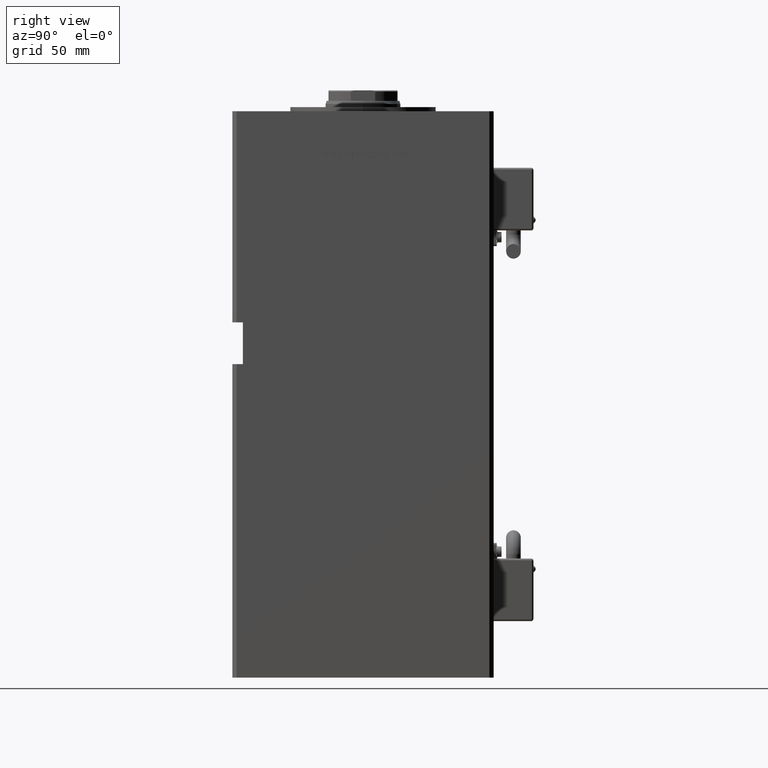
[diagram: clean part render]
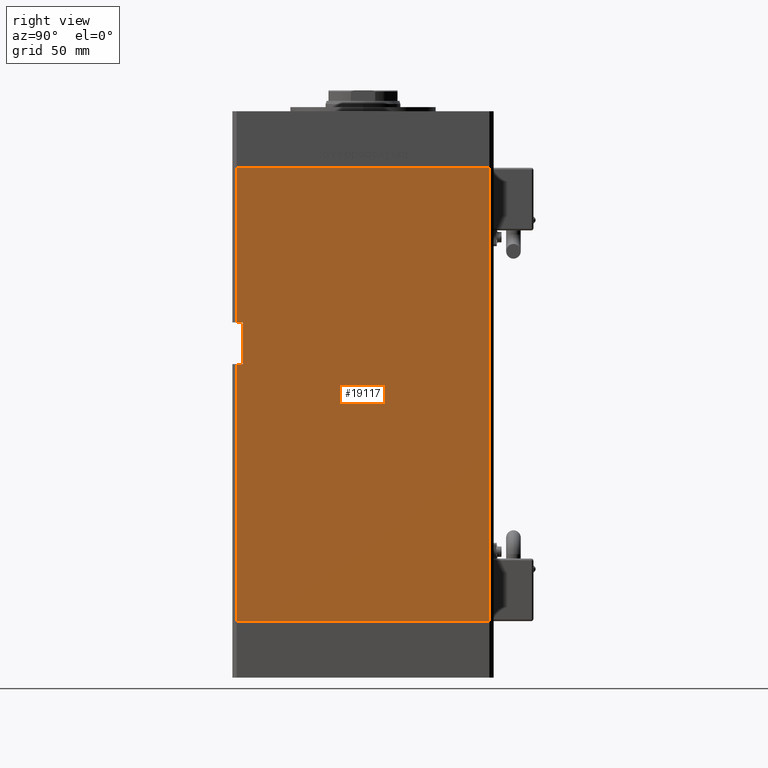
[diagram: same view with one face highlighted and labeled with its STEP entity id]
A machine part, right view. The second image highlights one B-rep face of the part: STEP entity #19117.
In plain terms, the highlighted planar face has unit normal (1, -0, 0).
Its self-contained STEP definition (entity closure, byte-faithful):
#1304 = CARTESIAN_POINT ( 'NONE',  ( 75.00000000000001421, 60.50000000000000000, 217.0000000000000000 ) ) ;
#1544 = ORIENTED_EDGE ( 'NONE', *, *, #29548, .F. ) ;
#2986 = CARTESIAN_POINT ( 'NONE',  ( 75.00000000000001421, 60.50000000000000000, 217.0000000000000000 ) ) ;
#3264 = DIRECTION ( 'NONE',  ( 1.000000000000000000, -2.293849224432142354E-16, 0.000000000000000000 ) ) ;
#3784 = EDGE_CURVE ( 'NONE', #27144, #20291, #15738, .T. ) ;
#3908 = CARTESIAN_POINT ( 'NONE',  ( 74.99999999999998579, -57.50000000000000000, 123.0000000000000000 ) ) ;
#4608 = ORIENTED_EDGE ( 'NONE', *, *, #7539, .T. ) ;
#5767 = EDGE_CURVE ( 'NONE', #29439, #27144, #14273, .T. ) ;
#7279 = VERTEX_POINT ( 'NONE', #44880 ) ;
#7539 = EDGE_CURVE ( 'NONE', #12933, #7279, #42655, .T. ) ;
#7866 = EDGE_CURVE ( 'NONE', #13352, #23965, #34880, .T. ) ;
#10577 = DIRECTION ( 'NONE',  ( -2.293849224432141861E-16, -1.000000000000000000, 0.000000000000000000 ) ) ;
#12933 = VERTEX_POINT ( 'NONE', #49359 ) ;
#13352 = VERTEX_POINT ( 'NONE', #52558 ) ;
#13702 = DIRECTION ( 'NONE',  ( -0.000000000000000000, -0.000000000000000000, -1.000000000000000000 ) ) ;
#14273 = LINE ( 'NONE', #1304, #37524 ) ;
#15367 = ORIENTED_EDGE ( 'NONE', *, *, #33943, .T. ) ;
#15738 = LINE ( 'NONE', #37434, #39285 ) ;
#15948 = FACE_OUTER_BOUND ( 'NONE', #34888, .T. ) ;
#19117 = ADVANCED_FACE ( 'NONE', ( #15948 ), #37362, .T. ) ;
#19163 = EDGE_CURVE ( 'NONE', #13352, #49416, #50067, .T. ) ;
#20291 = VERTEX_POINT ( 'NONE', #50582 ) ;
#23419 = ORIENTED_EDGE ( 'NONE', *, *, #7866, .T. ) ;
#23965 = VERTEX_POINT ( 'NONE', #26973 ) ;
#24035 = VECTOR ( 'NONE', #38211, 1000.000000000000000 ) ;
#25424 = ORIENTED_EDGE ( 'NONE', *, *, #5767, .F. ) ;
#26973 = CARTESIAN_POINT ( 'NONE',  ( 74.99999999999998579, -60.50000000000000000, 123.0000000000000000 ) ) ;
#27144 = VERTEX_POINT ( 'NONE', #40749 ) ;
#28601 = VECTOR ( 'NONE', #54519, 1000.000000000000000 ) ;
#29439 = VERTEX_POINT ( 'NONE', #53765 ) ;
#29548 = EDGE_CURVE ( 'NONE', #49416, #7279, #51217, .T. ) ;
#31164 = CARTESIAN_POINT ( 'NONE',  ( 74.99999999999998579, -60.50000000000000000, 217.0000000000000000 ) ) ;
#31721 = CARTESIAN_POINT ( 'NONE',  ( 75.00000000000001421, 60.50000000000000000, 217.0000000000000000 ) ) ;
#33225 = DIRECTION ( 'NONE',  ( -2.293849224432141861E-16, -1.000000000000000000, 0.000000000000000000 ) ) ;
#33943 = EDGE_CURVE ( 'NONE', #29439, #12933, #40164, .T. ) ;
#34880 = LINE ( 'NONE', #3908, #44808 ) ;
#34888 = EDGE_LOOP ( 'NONE', ( #23419, #44614, #52883, #25424, #15367, #4608, #1544, #53246 ) ) ;
#34980 = CARTESIAN_POINT ( 'NONE',  ( 74.99999999999998579, -57.50000000000000000, 143.0000000000000284 ) ) ;
#35165 = VECTOR ( 'NONE', #10577, 1000.000000000000000 ) ;
#37100 = DIRECTION ( 'NONE',  ( 2.293849224432142354E-16, 1.000000000000000000, 0.000000000000000000 ) ) ;
#37362 = PLANE ( 'NONE',  #51927 ) ;
#37434 = CARTESIAN_POINT ( 'NONE',  ( 75.00000000000001421, 60.50000000000000000, 0.000000000000000000 ) ) ;
#37524 = VECTOR ( 'NONE', #44424, 1000.000000000000000 ) ;
#38211 = DIRECTION ( 'NONE',  ( -0.000000000000000000, -0.000000000000000000, 1.000000000000000000 ) ) ;
#39285 = VECTOR ( 'NONE', #33225, 1000.000000000000000 ) ;
#40164 = LINE ( 'NONE', #31721, #35165 ) ;
#40749 = CARTESIAN_POINT ( 'NONE',  ( 75.00000000000001421, 60.50000000000000000, 0.000000000000000000 ) ) ;
#42655 = LINE ( 'NONE', #50579, #28601 ) ;
#43849 = LINE ( 'NONE', #31164, #54819 ) ;
#44424 = DIRECTION ( 'NONE',  ( -0.000000000000000000, -0.000000000000000000, -1.000000000000000000 ) ) ;
#44614 = ORIENTED_EDGE ( 'NONE', *, *, #52712, .T. ) ;
#44808 = VECTOR ( 'NONE', #46754, 1000.000000000000000 ) ;
#44880 = CARTESIAN_POINT ( 'NONE',  ( 74.99999999999998579, -60.50000000000000000, 143.0000000000000284 ) ) ;
#45836 = CARTESIAN_POINT ( 'NONE',  ( 74.99999999999998579, -57.50000000000000000, 143.0000000000000284 ) ) ;
#46754 = DIRECTION ( 'NONE',  ( -0.000000000000000000, -1.000000000000000000, -0.000000000000000000 ) ) ;
#49359 = CARTESIAN_POINT ( 'NONE',  ( 74.99999999999998579, -60.50000000000000000, 217.0000000000000000 ) ) ;
#49416 = VERTEX_POINT ( 'NONE', #34980 ) ;
#50067 = LINE ( 'NONE', #45836, #24035 ) ;
#50313 = VECTOR ( 'NONE', #50926, 1000.000000000000000 ) ;
#50579 = CARTESIAN_POINT ( 'NONE',  ( 74.99999999999998579, -60.50000000000000000, 217.0000000000000000 ) ) ;
#50582 = CARTESIAN_POINT ( 'NONE',  ( 74.99999999999998579, -60.50000000000000000, 0.000000000000000000 ) ) ;
#50926 = DIRECTION ( 'NONE',  ( -0.000000000000000000, -1.000000000000000000, -0.000000000000000000 ) ) ;
#51217 = LINE ( 'NONE', #55714, #50313 ) ;
#51927 = AXIS2_PLACEMENT_3D ( 'NONE', #2986, #3264, #37100 ) ;
#52558 = CARTESIAN_POINT ( 'NONE',  ( 74.99999999999998579, -57.49999999999999289, 123.0000000000000000 ) ) ;
#52712 = EDGE_CURVE ( 'NONE', #23965, #20291, #43849, .T. ) ;
#52883 = ORIENTED_EDGE ( 'NONE', *, *, #3784, .F. ) ;
#53246 = ORIENTED_EDGE ( 'NONE', *, *, #19163, .F. ) ;
#53765 = CARTESIAN_POINT ( 'NONE',  ( 75.00000000000001421, 60.50000000000000000, 217.0000000000000000 ) ) ;
#54519 = DIRECTION ( 'NONE',  ( -0.000000000000000000, -0.000000000000000000, -1.000000000000000000 ) ) ;
#54819 = VECTOR ( 'NONE', #13702, 1000.000000000000000 ) ;
#55714 = CARTESIAN_POINT ( 'NONE',  ( 74.99999999999998579, -57.50000000000000000, 143.0000000000000284 ) ) ;